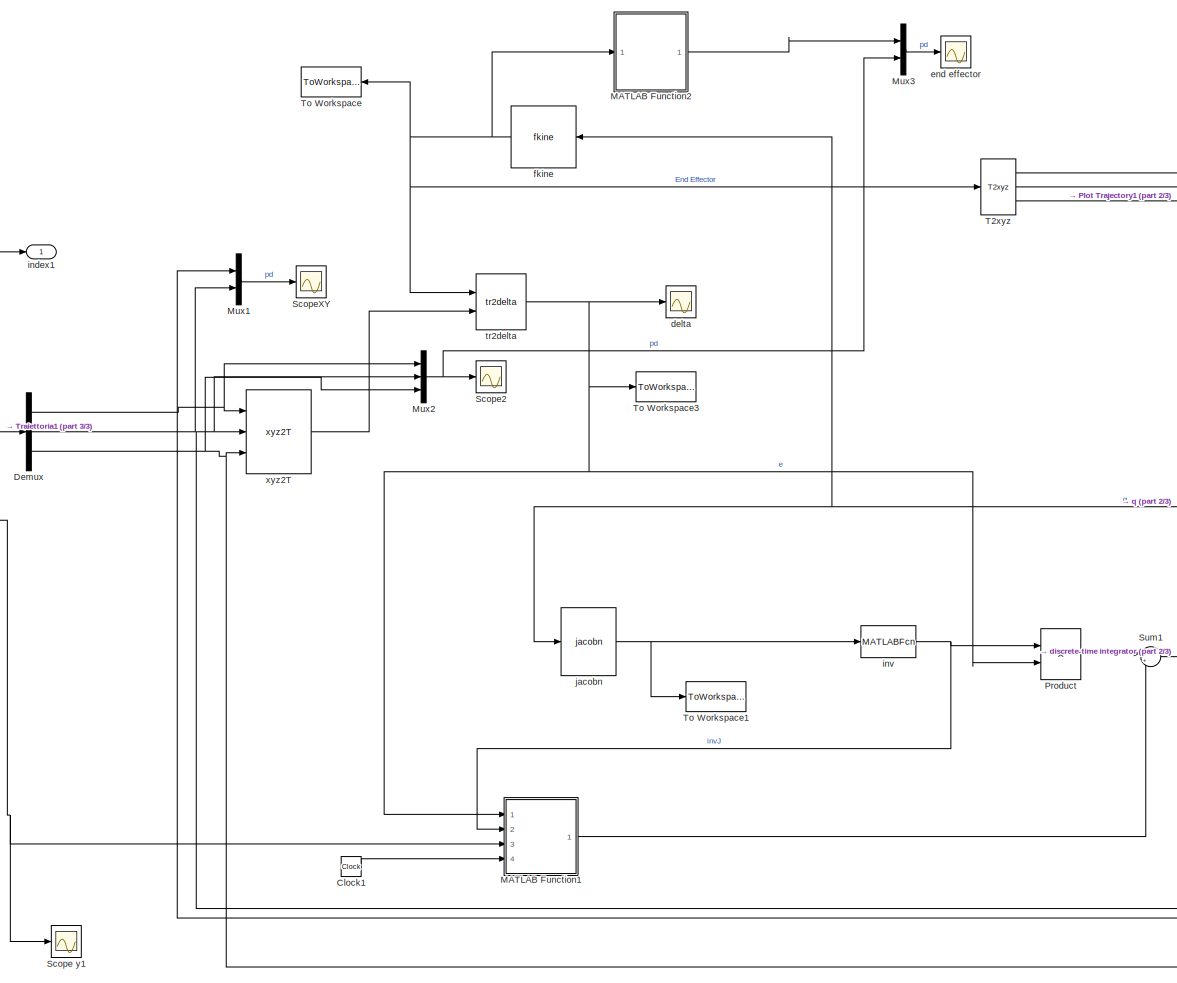
[diagram: root canvas - part 1/3, center side, full height]
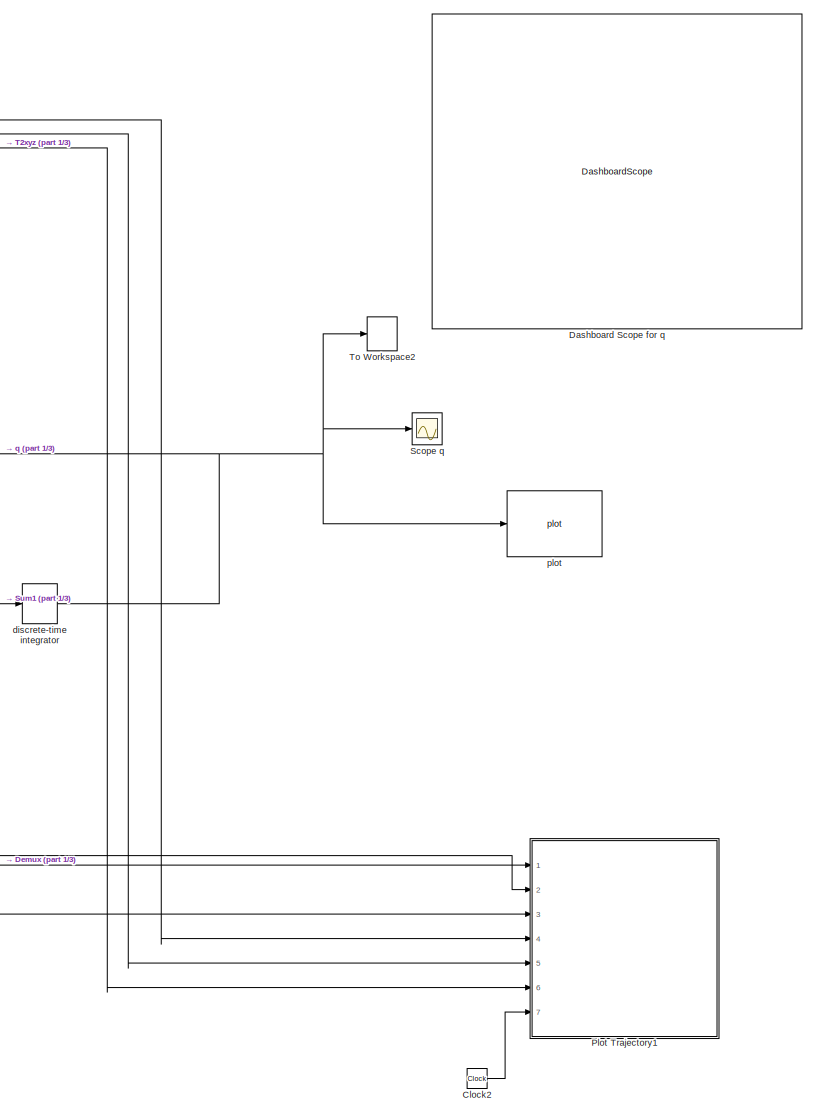
[diagram: root canvas - part 2/3, right side, full height]
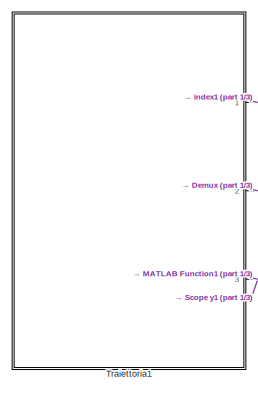
[diagram: root canvas - part 3/3, middle left region]
MODEL slx_50e4f1351e49
KIND model
CONFIG AbsTol = auto
CONFIG EnableMultiTasking = off
CONFIG FixedStep = auto
CONFIG MaxStep = auto
CONFIG MinStep = auto
CONFIG RelTol = 1e-3
CONFIG SampleTimeConstraint = Unconstrained
CONFIG SolverName = VariableStepAuto
CONFIG StartTime = 0.0
CONFIG StopTime = 50
BLOCK [Clock] Clock1
  Decimation = 1
BLOCK [Clock] Clock2
  Decimation = 1
BLOCK [DashboardScope] Dashboard Scope for q
BLOCK [Demux] Demux
  Outputs = 3
  Ports = [1, 3]
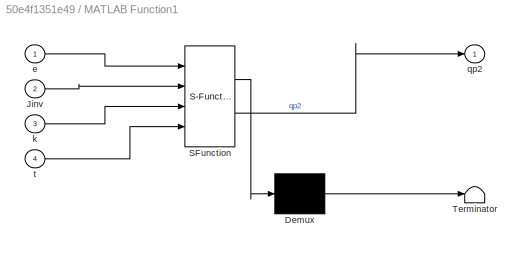
BLOCK [SubSystem] MATLAB Function1
  ErrorFcn = Stateflow.Translate.translate
  PermitHierarchicalResolution = ExplicitOnly
  Ports = [4, 1]
  Priority = 6
  RequestExecContextInheritance = off
  SFBlockType = MATLAB Function
  SystemSampleTime = 2*pi/100
  TreatAsAtomicUnit = on
BLOCK [Demux] MATLAB Function1/ Demux 
  Outputs = 1
  Ports = [1, 1]
BLOCK [S-Function] MATLAB Function1/ SFunction 
  EnableBusSupport = on
  FunctionName = sf_sfun
  PortCounts = [4 2]
  Ports = [4, 2]
  SFcnIsStateOwnerBlock = off
  SFunctionDeploymentMode = off
  Tag = Stateflow S-Function 9
BLOCK [Terminator] MATLAB Function1/ Terminator 
BLOCK [Inport] MATLAB Function1/Jinv
  Port = 2
BLOCK [Inport] MATLAB Function1/e
BLOCK [Inport] MATLAB Function1/k
  Port = 3
BLOCK [Outport] MATLAB Function1/qp2
BLOCK [Inport] MATLAB Function1/t
  Port = 4
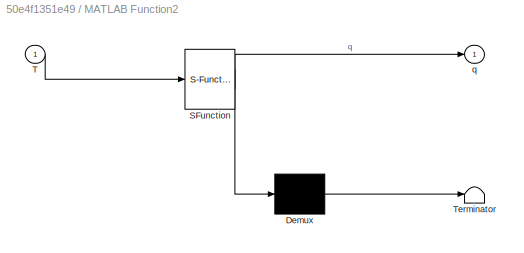
BLOCK [SubSystem] MATLAB Function2
  ErrorFcn = Stateflow.Translate.translate
  PermitHierarchicalResolution = ExplicitOnly
  Ports = [1, 1]
  Priority = 6
  RequestExecContextInheritance = off
  SFBlockType = MATLAB Function
  TreatAsAtomicUnit = on
BLOCK [Demux] MATLAB Function2/ Demux 
  Outputs = 1
  Ports = [1, 1]
BLOCK [S-Function] MATLAB Function2/ SFunction 
  EnableBusSupport = on
  FunctionName = sf_sfun
  PortCounts = [1 2]
  Ports = [1, 2]
  SFcnIsStateOwnerBlock = off
  SFunctionDeploymentMode = off
  Tag = Stateflow S-Function 3
BLOCK [Terminator] MATLAB Function2/ Terminator 
BLOCK [Inport] MATLAB Function2/T
BLOCK [Outport] MATLAB Function2/q
BLOCK [Mux] Mux1
  DisplayOption = bar
  Inputs = 2
  Ports = [2, 1]
BLOCK [Mux] Mux2
  DisplayOption = bar
  Inputs = 3
  Ports = [3, 1]
BLOCK [Mux] Mux3
  DisplayOption = bar
  Inputs = 2
  Ports = [2, 1]
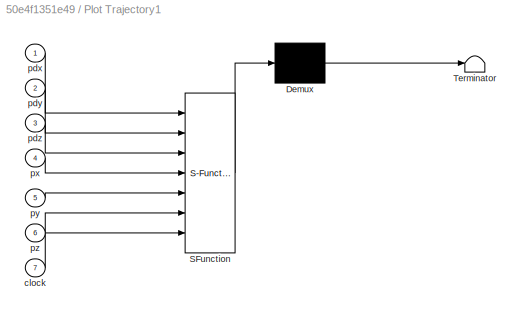
BLOCK [SubSystem] Plot Trajectory1
  Commented = on
  ErrorFcn = Stateflow.Translate.translate
  PermitHierarchicalResolution = ExplicitOnly
  Ports = [7]
  RequestExecContextInheritance = off
  SFBlockType = MATLAB Function
  SystemSampleTime = 0.1
  TreatAsAtomicUnit = on
BLOCK [Demux] Plot Trajectory1/ Demux 
  Outputs = 1
  Ports = [1, 1]
BLOCK [S-Function] Plot Trajectory1/ SFunction 
  EnableBusSupport = on
  FunctionName = sf_sfun
  PortCounts = [7 1]
  Ports = [7, 1]
  SFcnIsStateOwnerBlock = off
  SFunctionDeploymentMode = off
  Tag = Stateflow S-Function 1
BLOCK [Terminator] Plot Trajectory1/ Terminator 
BLOCK [Inport] Plot Trajectory1/clock
  Port = 7
BLOCK [Inport] Plot Trajectory1/pdx
BLOCK [Inport] Plot Trajectory1/pdy
  Port = 2
BLOCK [Inport] Plot Trajectory1/pdz
  Port = 3
BLOCK [Inport] Plot Trajectory1/px
  Port = 4
BLOCK [Inport] Plot Trajectory1/py
  Port = 5
BLOCK [Inport] Plot Trajectory1/pz
  Port = 6
BLOCK [Product] Product
  InputSameDT = on
  Multiplication = Matrix(*)
  OutDataTypeStr = Inherit: Same as first input
  Ports = [2, 1]
  RndMeth = Zero
  SaturateOnIntegerOverflow = on
BLOCK [Scope] Scope q
  Floating = off
  NumInputPorts = 1
  Ports = [1]
  ScopeSpecificationString = Simulink.scopes.TimeScopeBlockCfg('CurrentConfiguration', extmgr.ConfigurationSet(extmgr.Configuration('Core','General UI',true),extmgr.Configuration('Core','Source UI',true),extmgr.Configuration('Sources','WiredSimulink',true,'DataLoggingVariableName','ScopeData2'),extmgr.Configuration('Visuals','Time Domain',true,'SerializedDisplays',{struct('MinYLimReal','-39.93232','MaxYLimReal','39.93232','YL...<+1499ch>
BLOCK [Scope] Scope y1
  Floating = off
  NumInputPorts = 1
  Ports = [1]
  ScopeSpecificationString = Simulink.scopes.TimeScopeBlockCfg('CurrentConfiguration', extmgr.ConfigurationSet(extmgr.Configuration('Core','General UI',true),extmgr.Configuration('Core','Source UI',true),extmgr.Configuration('Sources','WiredSimulink',true,'DataLoggingVariableName','ScopeData2'),extmgr.Configuration('Visuals','Time Domain',true,'SerializedDisplays',{struct('MinYLimReal','-1.79942','MaxYLimReal','102.61676','YL...<+1453ch>
BLOCK [Scope] Scope2
  Floating = off
  NumInputPorts = 1
  Ports = [1]
  ScopeSpecificationString = Simulink.scopes.TimeScopeBlockCfg('CurrentConfiguration', extmgr.ConfigurationSet(extmgr.Configuration('Core','General UI',true),extmgr.Configuration('Core','Source UI',true),extmgr.Configuration('Sources','WiredSimulink',true,'DataLoggingVariableName','ScopeData1'),extmgr.Configuration('Visuals','Time Domain',true,'SerializedDisplays',{struct('MinYLimReal','-0.65','MaxYLimReal','0.85','YLabelReal...<+1477ch>
BLOCK [Scope] ScopeXY
  Floating = off
  NumInputPorts = 1
  Ports = [1]
  ScopeSpecificationString = Simulink.scopes.TimeScopeBlockCfg('CurrentConfiguration', extmgr.ConfigurationSet(extmgr.Configuration('Core','General UI',true),extmgr.Configuration('Core','Source UI',true),extmgr.Configuration('Sources','WiredSimulink',true,'DataLoggingVariableName','ScopeData3'),extmgr.Configuration('Visuals','Time Domain',true,'SerializedDisplays',{struct('MinYLimReal','-0.34364','MaxYLimReal','0.37414','YLab...<+1498ch>
BLOCK [Sum] Sum1
  Inputs = |++
  Ports = [2, 1]
BLOCK [Reference] T2xyz  REF=roblocks/Toolbox/T2xyz  (lib defined in mdl_2a292b13c81b, mdl_69400f8cfe22, +12 more)
  Ports = [1, 3]
  SourceBlock = roblocks/Toolbox/T2xyz
BLOCK [ToWorkspace] To Workspace
  MaxDataPoints = inf
  Ports = [1]
  SampleTime = -1
  VariableName = T
BLOCK [ToWorkspace] To Workspace1
  MaxDataPoints = inf
  NameLocation = top
  Ports = [1]
  SampleTime = -1
  VariableName = J
BLOCK [ToWorkspace] To Workspace2
  MaxDataPoints = inf
  NameLocation = top
  Ports = [1]
  SampleTime = -1
  VariableName = q
BLOCK [ToWorkspace] To Workspace3
  MaxDataPoints = inf
  NameLocation = top
  Ports = [1]
  SampleTime = -1
  VariableName = delta
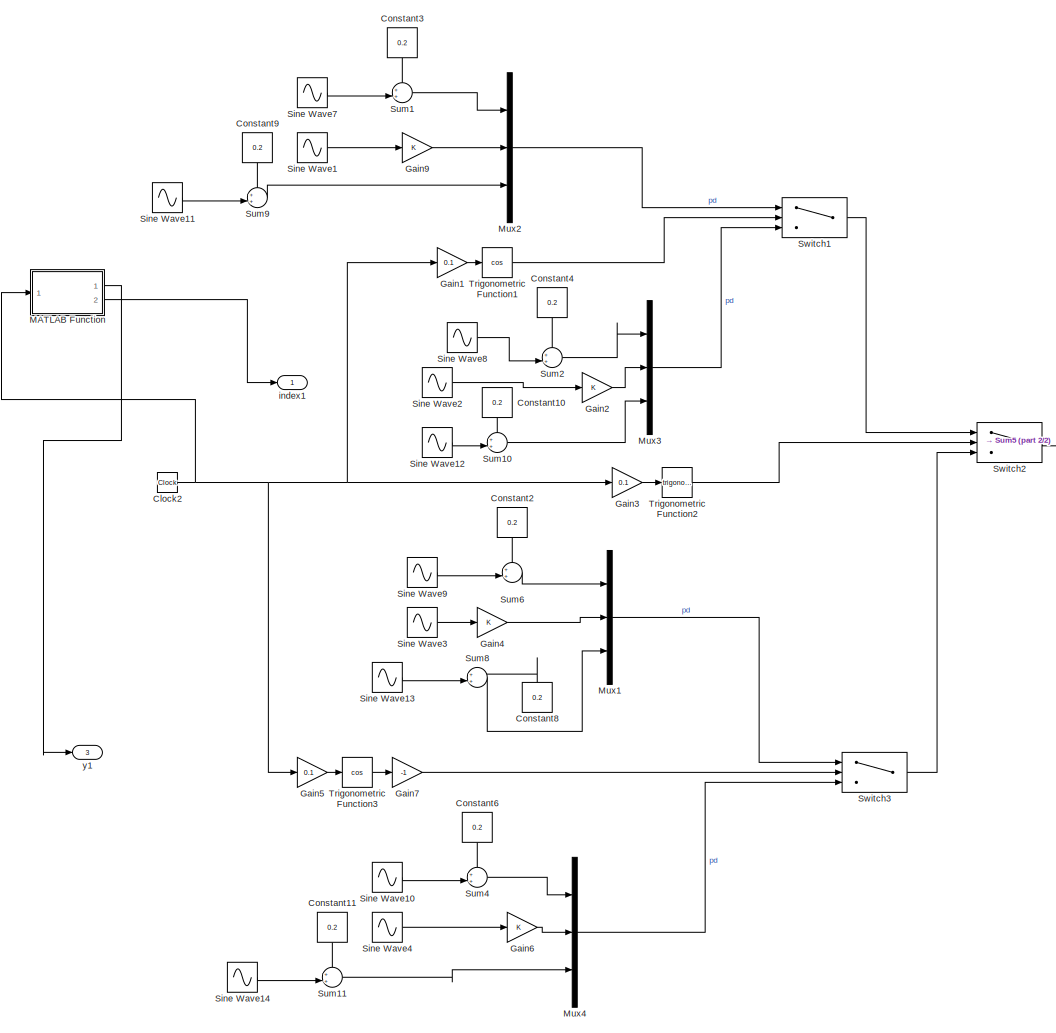
[diagram: Traiettoria1 - part 1/2, center side, full height]
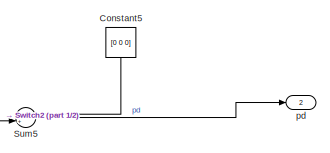
[diagram: Traiettoria1 - part 2/2, middle right region]
BLOCK [SubSystem] Traiettoria1
  Ports = [0, 3]
  RequestExecContextInheritance = off
BLOCK [Clock] Traiettoria1/Clock2
  Decimation = 1
BLOCK [Constant] Traiettoria1/Constant10
  NameLocation = left
  Value = 0.2
BLOCK [Constant] Traiettoria1/Constant11
  NameLocation = left
  Value = 0.2
BLOCK [Constant] Traiettoria1/Constant2
  NameLocation = left
  Value = 0.2
BLOCK [Constant] Traiettoria1/Constant3
  NameLocation = left
  Value = 0.2
BLOCK [Constant] Traiettoria1/Constant4
  NameLocation = left
  Value = 0.2
BLOCK [Constant] Traiettoria1/Constant5
  NameLocation = left
  Value = [0 0 0]
BLOCK [Constant] Traiettoria1/Constant6
  NameLocation = left
  Value = 0.2
BLOCK [Constant] Traiettoria1/Constant8
  NameLocation = right
  Value = 0.2
BLOCK [Constant] Traiettoria1/Constant9
  NameLocation = left
  Value = 0.2
BLOCK [Gain] Traiettoria1/Gain1
  Gain = 0.1
BLOCK [Gain] Traiettoria1/Gain2
BLOCK [Gain] Traiettoria1/Gain3
  Gain = 0.1
BLOCK [Gain] Traiettoria1/Gain4
BLOCK [Gain] Traiettoria1/Gain5
  Gain = 0.1
BLOCK [Gain] Traiettoria1/Gain6
BLOCK [Gain] Traiettoria1/Gain7
  Gain = -1
BLOCK [Gain] Traiettoria1/Gain9
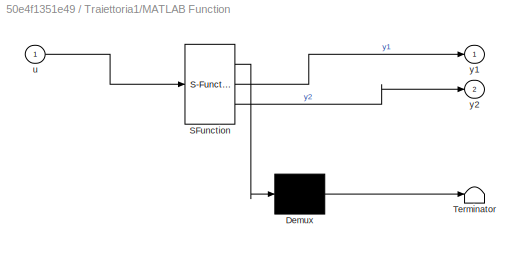
BLOCK [SubSystem] Traiettoria1/MATLAB Function
  ErrorFcn = Stateflow.Translate.translate
  PermitHierarchicalResolution = ExplicitOnly
  Ports = [1, 2]
  RequestExecContextInheritance = off
  SFBlockType = MATLAB Function
  SystemSampleTime = 2*pi/100
  TreatAsAtomicUnit = on
BLOCK [Demux] Traiettoria1/MATLAB Function/ Demux 
  Outputs = 1
  Ports = [1, 1]
BLOCK [S-Function] Traiettoria1/MATLAB Function/ SFunction 
  EnableBusSupport = on
  FunctionName = sf_sfun
  PortCounts = [1 3]
  Ports = [1, 3]
  SFcnIsStateOwnerBlock = off
  SFunctionDeploymentMode = off
  Tag = Stateflow S-Function 2
BLOCK [Terminator] Traiettoria1/MATLAB Function/ Terminator 
BLOCK [Inport] Traiettoria1/MATLAB Function/u
BLOCK [Outport] Traiettoria1/MATLAB Function/y1
BLOCK [Outport] Traiettoria1/MATLAB Function/y2
  Port = 2
BLOCK [Mux] Traiettoria1/Mux1
  DisplayOption = bar
  Inputs = 3
  Ports = [3, 1]
BLOCK [Mux] Traiettoria1/Mux2
  DisplayOption = bar
  Inputs = 3
  Ports = [3, 1]
BLOCK [Mux] Traiettoria1/Mux3
  DisplayOption = bar
  Inputs = 3
  Ports = [3, 1]
BLOCK [Mux] Traiettoria1/Mux4
  DisplayOption = bar
  Inputs = 3
  Ports = [3, 1]
BLOCK [Sin] Traiettoria1/Sine Wave1
  Amplitude = 0.5
  Frequency = fr
  Phase = pi/2
  Ports = [0, 1]
  SampleTime = 0
BLOCK [Sin] Traiettoria1/Sine Wave10
  Amplitude = 0.5
  Frequency = fr
  Ports = [0, 1]
  SampleTime = 0
BLOCK [Sin] Traiettoria1/Sine Wave11
  Amplitude = 0.2
  Frequency = fr
  Ports = [0, 1]
  SampleTime = 0
BLOCK [Sin] Traiettoria1/Sine Wave12
  Amplitude = 0.2
  Frequency = fr
  Ports = [0, 1]
  SampleTime = 0
BLOCK [Sin] Traiettoria1/Sine Wave13
  Amplitude = 0.2
  Frequency = fr
  Ports = [0, 1]
  SampleTime = 0
BLOCK [Sin] Traiettoria1/Sine Wave14
  Amplitude = 0.2
  Frequency = fr
  Ports = [0, 1]
  SampleTime = 0
BLOCK [Sin] Traiettoria1/Sine Wave2
  Amplitude = 0.5
  Frequency = fr
  Phase = pi/2
  Ports = [0, 1]
  SampleTime = 0
BLOCK [Sin] Traiettoria1/Sine Wave3
  Amplitude = 0.5
  Frequency = fr
  Phase = pi/2
  Ports = [0, 1]
  SampleTime = 0
BLOCK [Sin] Traiettoria1/Sine Wave4
  Amplitude = 0.5
  Frequency = fr
  Phase = pi/2
  Ports = [0, 1]
  SampleTime = 0
BLOCK [Sin] Traiettoria1/Sine Wave7
  Amplitude = 0.5
  Frequency = fr
  Ports = [0, 1]
  SampleTime = 0
BLOCK [Sin] Traiettoria1/Sine Wave8
  Amplitude = 0.5
  Frequency = fr
  Ports = [0, 1]
  SampleTime = 0
BLOCK [Sin] Traiettoria1/Sine Wave9
  Amplitude = 0.5
  Frequency = fr
  Ports = [0, 1]
  SampleTime = 0
BLOCK [Sum] Traiettoria1/Sum1
  Inputs = ++|
  Ports = [2, 1]
BLOCK [Sum] Traiettoria1/Sum10
  Inputs = ++|
  Ports = [2, 1]
BLOCK [Sum] Traiettoria1/Sum11
  Inputs = ++|
  Ports = [2, 1]
BLOCK [Sum] Traiettoria1/Sum2
  Inputs = ++|
  Ports = [2, 1]
BLOCK [Sum] Traiettoria1/Sum4
  Inputs = ++|
  Ports = [2, 1]
BLOCK [Sum] Traiettoria1/Sum5
  Inputs = ++|
  Ports = [2, 1]
BLOCK [Sum] Traiettoria1/Sum6
  Inputs = ++|
  Ports = [2, 1]
BLOCK [Sum] Traiettoria1/Sum8
  Inputs = ++|
  Ports = [2, 1]
BLOCK [Sum] Traiettoria1/Sum9
  Inputs = ++|
  Ports = [2, 1]
BLOCK [Switch] Traiettoria1/Switch1
  Criteria = u2 > Threshold
  InputSameDT = off
  SaturateOnIntegerOverflow = off
BLOCK [Switch] Traiettoria1/Switch2
  Criteria = u2 > Threshold
  InputSameDT = off
  SaturateOnIntegerOverflow = off
BLOCK [Switch] Traiettoria1/Switch3
  Criteria = u2 > Threshold
  InputSameDT = off
  SaturateOnIntegerOverflow = off
BLOCK [Trigonometry] Traiettoria1/Trigonometric Function1
  Operator = cos
  Ports = [1, 1]
BLOCK [Trigonometry] Traiettoria1/Trigonometric Function2
  Ports = [1, 1]
BLOCK [Trigonometry] Traiettoria1/Trigonometric Function3
  Operator = cos
  Ports = [1, 1]
BLOCK [Outport] Traiettoria1/index1
BLOCK [Outport] Traiettoria1/pd
  Port = 2
BLOCK [Outport] Traiettoria1/y1
  Port = 3
BLOCK [Scope] delta
  Floating = off
  NumInputPorts = 1
  Ports = [1]
  ScopeSpecificationString = Simulink.scopes.TimeScopeBlockCfg('CurrentConfiguration', extmgr.ConfigurationSet(extmgr.Configuration('Core','General UI',true),extmgr.Configuration('Core','Source UI',true),extmgr.Configuration('Sources','WiredSimulink',true,'DataLoggingVariableName','ScopeData1'),extmgr.Configuration('Visuals','Time Domain',true,'SerializedDisplays',{struct('MinYLimReal','-1.20626','MaxYLimReal','0.85631','YLab...<+1510ch>
BLOCK [DiscreteIntegrator] discrete-time integrator
  ICPrevOutput = DiscIntNeverNeededParam
  ICPrevScaledInput = DiscIntNeverNeededParam
  InitialCondition = qn
  Ports = [1, 1]
  SampleTime = 0.1
  gainval = 5
BLOCK [Scope] end effector
  Floating = off
  NumInputPorts = 1
  Ports = [1]
  ScopeSpecificationString = Simulink.scopes.TimeScopeBlockCfg('CurrentConfiguration', extmgr.ConfigurationSet(extmgr.Configuration('Core','General UI',true),extmgr.Configuration('Core','Source UI',true),extmgr.Configuration('Sources','WiredSimulink',true,'DataLoggingVariableName','ScopeData3'),extmgr.Configuration('Visuals','Time Domain',true,'SerializedDisplays',{struct('MinYLimReal','-0.65286','MaxYLimReal','0.85573','YLab...<+1537ch>
BLOCK [Reference] fkine  REF=roblocks/Arm/fkine  (lib defined in mdl_2a292b13c81b, mdl_69400f8cfe22, +12 more)
  Ports = [1, 1]
  SourceBlock = roblocks/Arm/fkine
BLOCK [Outport] index1
BLOCK [MATLABFcn] inv
  MATLABFcn = inv
  Output1D = off
  Ports = [1, 1]
BLOCK [Reference] jacobn  REF=roblocks/Arm/jacobn  (lib defined in mdl_2a292b13c81b, mdl_69400f8cfe22, +12 more)
  Ports = [1, 1]
  SourceBlock = roblocks/Arm/jacobn
BLOCK [Reference] plot  REF=roblocks/Arm/plot  (lib defined in mdl_2a292b13c81b, mdl_69400f8cfe22, +12 more)
  Ports = [1]
  SourceBlock = roblocks/Arm/plot
BLOCK [Reference] tr2delta  REF=roblocks/Toolbox/tr2delta  (lib defined in mdl_2a292b13c81b, mdl_69400f8cfe22, +12 more)
  Ports = [2, 1]
  SourceBlock = roblocks/Toolbox/tr2delta
BLOCK [Reference] xyz2T  REF=roblocks/Toolbox/xyz2T  (lib defined in mdl_2a292b13c81b, mdl_69400f8cfe22, +12 more)
  Ports = [3, 1]
  SourceBlock = roblocks/Toolbox/xyz2T
LINE Clock1:1 -> MATLAB Function1:4
LINE Clock2:1 -> Plot Trajectory1:7
NET Demux:1 -> Mux1:1, Mux2:1, Plot Trajectory1:1, xyz2T:1
NET Demux:2 -> Mux1:2, Mux2:2, Plot Trajectory1:2, xyz2T:2
NET Demux:3 -> Mux2:3, Plot Trajectory1:3, xyz2T:3
LINE MATLAB Function1:1 -> Sum1:2
LINE MATLAB Function2:1 -> Mux3:1
LINE Mux1:1 -> ScopeXY:1
NET Mux2:1 -> Mux3:2, Scope2:1
LINE Mux3:1 -> end effector:1
LINE Product:1 -> Sum1:1
LINE Sum1:1 -> discrete-time integrator:1
LINE T2xyz:1 -> Plot Trajectory1:4
LINE T2xyz:2 -> Plot Trajectory1:5
LINE T2xyz:3 -> Plot Trajectory1:6
NET Traiettoria1/Clock2:1 -> Traiettoria1/Gain1:1, Traiettoria1/Gain3:1, Traiettoria1/Gain5:1, Traiettoria1/MATLAB Function:1
LINE Traiettoria1/Constant10:1 -> Traiettoria1/Sum10:1
LINE Traiettoria1/Constant11:1 -> Traiettoria1/Sum11:1
LINE Traiettoria1/Constant2:1 -> Traiettoria1/Sum6:1
LINE Traiettoria1/Constant3:1 -> Traiettoria1/Sum1:1
LINE Traiettoria1/Constant4:1 -> Traiettoria1/Sum2:1
LINE Traiettoria1/Constant5:1 -> Traiettoria1/Sum5:1
LINE Traiettoria1/Constant6:1 -> Traiettoria1/Sum4:1
LINE Traiettoria1/Constant8:1 -> Traiettoria1/Sum8:1
LINE Traiettoria1/Constant9:1 -> Traiettoria1/Sum9:1
LINE Traiettoria1/Gain1:1 -> Traiettoria1/Trigonometric Function1:1
LINE Traiettoria1/Gain2:1 -> Traiettoria1/Mux3:2
LINE Traiettoria1/Gain3:1 -> Traiettoria1/Trigonometric Function2:1
LINE Traiettoria1/Gain4:1 -> Traiettoria1/Mux1:2
LINE Traiettoria1/Gain5:1 -> Traiettoria1/Trigonometric Function3:1
LINE Traiettoria1/Gain6:1 -> Traiettoria1/Mux4:2
LINE Traiettoria1/Gain7:1 -> Traiettoria1/Switch3:2
LINE Traiettoria1/Gain9:1 -> Traiettoria1/Mux2:2
LINE Traiettoria1/MATLAB Function:1 -> Traiettoria1/y1:1
LINE Traiettoria1/MATLAB Function:2 -> Traiettoria1/index1:1
LINE Traiettoria1/Mux1:1 -> Traiettoria1/Switch3:1
LINE Traiettoria1/Mux2:1 -> Traiettoria1/Switch1:1
LINE Traiettoria1/Mux3:1 -> Traiettoria1/Switch1:3
LINE Traiettoria1/Mux4:1 -> Traiettoria1/Switch3:3
LINE Traiettoria1/Sine Wave10:1 -> Traiettoria1/Sum4:2
LINE Traiettoria1/Sine Wave11:1 -> Traiettoria1/Sum9:2
LINE Traiettoria1/Sine Wave12:1 -> Traiettoria1/Sum10:2
LINE Traiettoria1/Sine Wave13:1 -> Traiettoria1/Sum8:2
LINE Traiettoria1/Sine Wave14:1 -> Traiettoria1/Sum11:2
LINE Traiettoria1/Sine Wave1:1 -> Traiettoria1/Gain9:1
LINE Traiettoria1/Sine Wave2:1 -> Traiettoria1/Gain2:1
LINE Traiettoria1/Sine Wave3:1 -> Traiettoria1/Gain4:1
LINE Traiettoria1/Sine Wave4:1 -> Traiettoria1/Gain6:1
LINE Traiettoria1/Sine Wave7:1 -> Traiettoria1/Sum1:2
LINE Traiettoria1/Sine Wave8:1 -> Traiettoria1/Sum2:2
LINE Traiettoria1/Sine Wave9:1 -> Traiettoria1/Sum6:2
LINE Traiettoria1/Sum10:1 -> Traiettoria1/Mux3:3
LINE Traiettoria1/Sum11:1 -> Traiettoria1/Mux4:3
LINE Traiettoria1/Sum1:1 -> Traiettoria1/Mux2:1
LINE Traiettoria1/Sum2:1 -> Traiettoria1/Mux3:1
LINE Traiettoria1/Sum4:1 -> Traiettoria1/Mux4:1
LINE Traiettoria1/Sum5:1 -> Traiettoria1/pd:1
LINE Traiettoria1/Sum6:1 -> Traiettoria1/Mux1:1
LINE Traiettoria1/Sum8:1 -> Traiettoria1/Mux1:3
LINE Traiettoria1/Sum9:1 -> Traiettoria1/Mux2:3
LINE Traiettoria1/Switch1:1 -> Traiettoria1/Switch2:1
LINE Traiettoria1/Switch2:1 -> Traiettoria1/Sum5:2
LINE Traiettoria1/Switch3:1 -> Traiettoria1/Switch2:3
LINE Traiettoria1/Trigonometric Function1:1 -> Traiettoria1/Switch1:2
LINE Traiettoria1/Trigonometric Function2:1 -> Traiettoria1/Switch2:2
LINE Traiettoria1/Trigonometric Function3:1 -> Traiettoria1/Gain7:1
LINE Traiettoria1:1 -> index1:1
LINE Traiettoria1:2 -> Demux:1
NET Traiettoria1:3 -> MATLAB Function1:3, Scope y1:1
NET discrete-time integrator:1 -> Scope q:1, To Workspace2:1, fkine:1, jacobn:1, plot:1
NET fkine:1 -> MATLAB Function2:1, T2xyz:1, To Workspace:1, tr2delta:1
NET inv:1 -> MATLAB Function1:2, Product:1
NET jacobn:1 -> To Workspace1:1, inv:1
NET tr2delta:1 -> MATLAB Function1:1, Product:2, To Workspace3:1, delta:1
LINE xyz2T:1 -> tr2delta:2
note: NET lines group one-source signal fan-out (src -> all destinations, sorted); 1:1 wires keep LINE
CHART Plot Trajectory1 states=1 transitions=1
  STATE_LABEL 'eML_blk_kernel()'
  STATE_LABEL "SCRIPT:\nfunction PlotTraiettoria(pdx,pdy,pdz,px,py,pz, clock)\n\neml.extrinsic('findobj','get','set','figure','clf',...\n              'hold','delete','plot','axis','grid',...\n              'hggroup','quiver','drawnow');\n          \npersistent target;\n% persistent chain;\n% persistent velocity;\n% persistent chain2;\npersistent i;\npersistent k;\n\npersistent obiettivo;\n\n\nn=1;\n\n\nif isempty(target)\n    targe...<+1538ch>"
CHART Traiettoria1/MATLAB Function states=1 transitions=1
  STATE_LABEL 'eML_blk_kernel()'
  STATE_LABEL 'SCRIPT:\nfunction [y1,y2] = fcn(u)\n\nfr=1;\ny1 = floor(100.*mod(fr.*u,(2*pi)) /(2*pi))+1;\ny2 = floor(0.3*u/(2*pi));\n'
CHART MATLAB Function2 states=1 transitions=1
  STATE_LABEL 'eML_blk_kernel()'
  STATE_LABEL 'SCRIPT:\nfunction q = fcn(T)\n\nq=zeros(3,1);\nq(1)=T(1,4);\nq(2)=T(2,4);\nq(3)=T(3,4);\n'
CHART MATLAB Function1 states=1 transitions=1
  STATE_LABEL 'eML_blk_kernel()'
  STATE_LABEL "SCRIPT:\nfunction qp2 = fcn(e,Jinv,k, t)\n\npersistent f_v\npersistent e_v\npersistent last_k\n\nn=100;\n\nif isempty(last_k)\n    last_k=-1;\nend\n\n\nif isempty(f_v)\n    f_v=zeros(n,6);\nend\n   \nif isempty(e_v)\n    e_v=zeros(n,6);\nend\n\n\nif k~=last_k\n%   \n     %disp(k)\n     last_k=k;\n     \n     if t<8*pi\n        f_v(k,:)=0.6.*f_v(k,:); %+(Jinv*e_v(k,:)')';\n     else\n        f_v(k,:)=0.99.*f_v(k,:)+0.5*(Jinv*e_v...<+85ch>"
CHART  states=0 transitions=0
CHART  states=0 transitions=0
CHART  states=0 transitions=0
CHART  states=0 transitions=0
